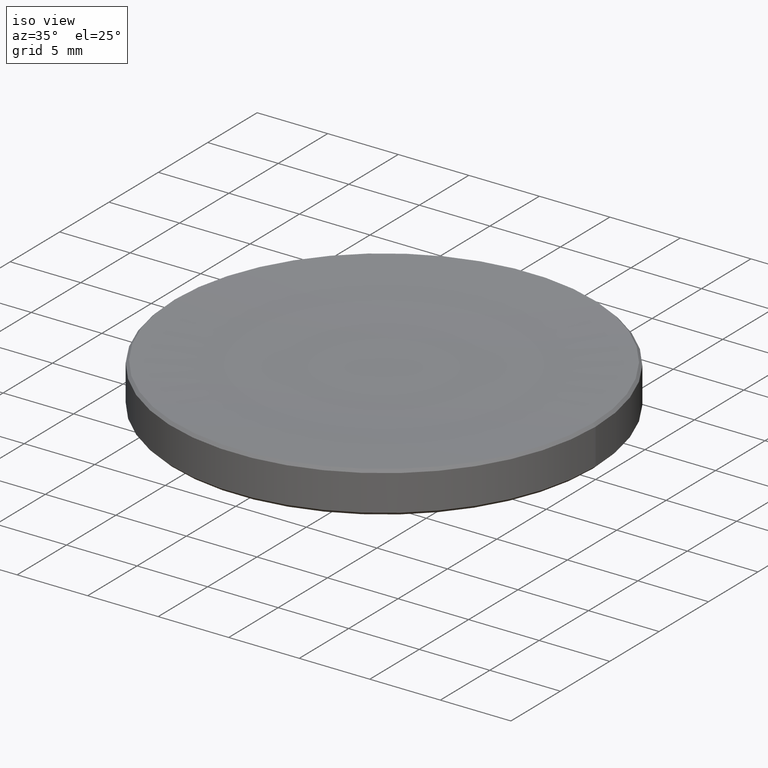
[diagram: clean part render]
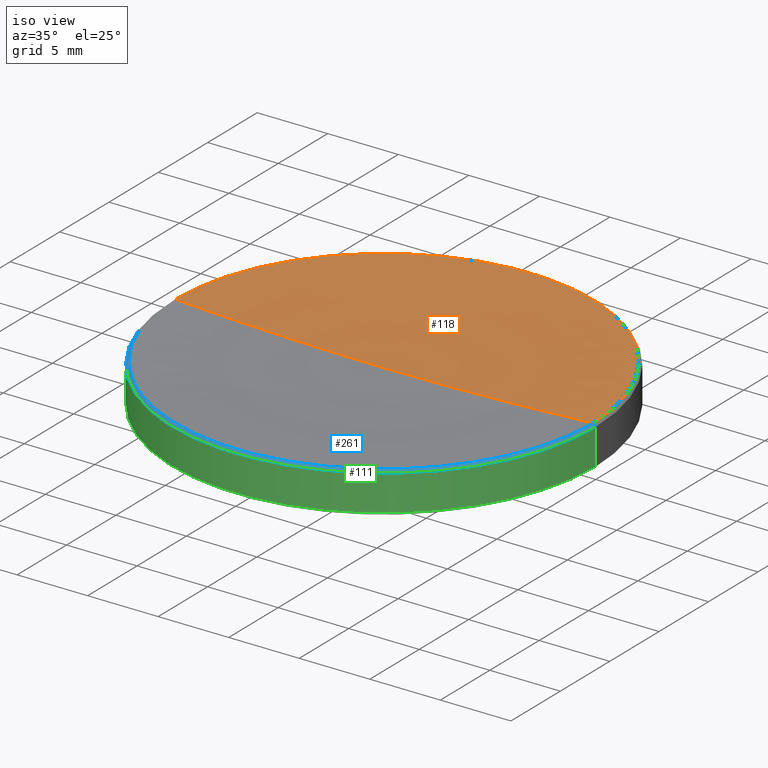
[diagram: same view with three faces highlighted in distinct colors, each labeled with its STEP entity id]
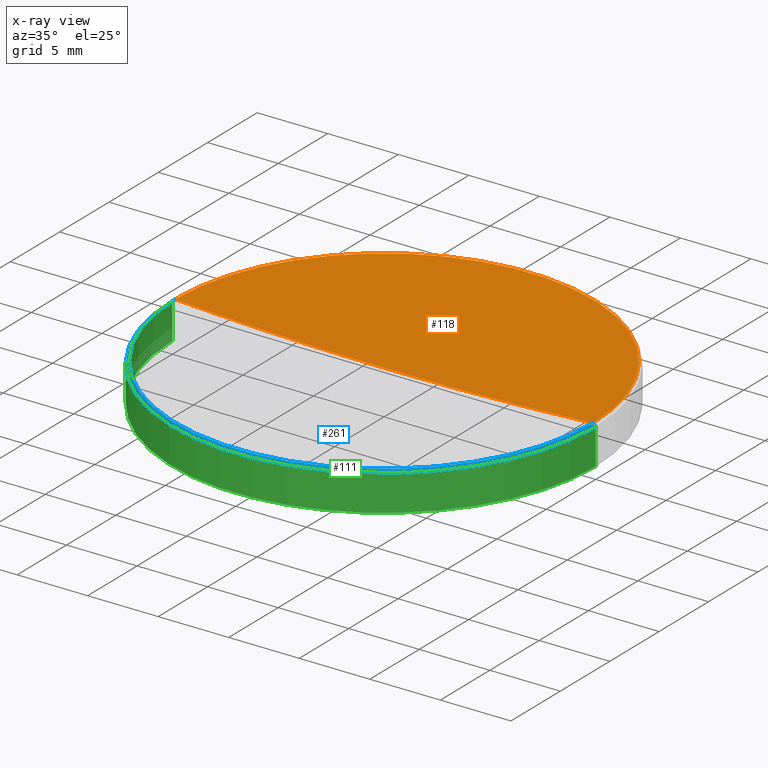
[diagram: x-ray of the same camera — body ghosted, the three highlighted faces saturated]
A machine part, iso view with three faces highlighted in distinct colors.
The next image is the same camera in x-ray (body ghosted, the three faces saturated) — at least one of them is partly hidden behind the body in this view.
Their STEP definitions:

[orange] entity #118 — the highlighted toroidal blend (fillet) surface has major radius 0.0668 mm and minor (blend) radius 258.18 mm.
#4 = DIRECTION ( 'NONE',  ( 1.224646799147353207E-16, 1.000000000000000000, 0.000000000000000000 ) ) ;
#8 = TOROIDAL_SURFACE ( 'NONE', #230, -0.06682641297565440619, 258.1800000000000068 ) ;
#20 = VERTEX_POINT ( 'NONE', #85 ) ;
#39 = AXIS2_PLACEMENT_3D ( 'NONE', #66, #229, #137 ) ;
#40 = EDGE_LOOP ( 'NONE', ( #71, #87, #244 ) ) ;
#42 = DIRECTION ( 'NONE',  ( 0.000000000000000000, 0.000000000000000000, -1.000000000000000000 ) ) ;
#48 = EDGE_CURVE ( 'NONE', #173, #121, #160, .T. ) ;
#66 = CARTESIAN_POINT ( 'NONE',  ( 0.000000000000000000, 0.000000000000000000, 2.929019919806263861 ) ) ;
#71 = ORIENTED_EDGE ( 'NONE', *, *, #231, .F. ) ;
#85 = CARTESIAN_POINT ( 'NONE',  ( -14.81098008019427681, 1.813821934744513201E-15, 2.929019919806235883 ) ) ;
#87 = ORIENTED_EDGE ( 'NONE', *, *, #48, .T. ) ;
#91 = DIRECTION ( 'NONE',  ( -1.000000000000000000, 1.224646799147353207E-16, 0.000000000000000000 ) ) ;
#97 = CIRCLE ( 'NONE', #185, 258.1800000000000068 ) ;
#109 = CARTESIAN_POINT ( 'NONE',  ( 0.000000000000000000, 0.000000000000000000, 260.6799913514417426 ) ) ;
#117 = CARTESIAN_POINT ( 'NONE',  ( 0.06682641297565440619, -8.183875274913430883E-18, 260.6799913514417426 ) ) ;
#118 = ADVANCED_FACE ( 'NONE', ( #217 ), #8, .F. ) ;
#121 = VERTEX_POINT ( 'NONE', #141 ) ;
#127 = CARTESIAN_POINT ( 'NONE',  ( 0.000000000000000000, 0.000000000000000000, 2.500000000000000000 ) ) ;
#137 = DIRECTION ( 'NONE',  ( 1.000000000000000000, 0.000000000000000000, 0.000000000000000000 ) ) ;
#141 = CARTESIAN_POINT ( 'NONE',  ( 14.81098008019427681, 0.000000000000000000, 2.929019919806235883 ) ) ;
#151 = CARTESIAN_POINT ( 'NONE',  ( -0.06682641297565440619, 0.000000000000000000, 260.6799913514417426 ) ) ;
#160 = CIRCLE ( 'NONE', #211, 258.1800000000000068 ) ;
#173 = VERTEX_POINT ( 'NONE', #127 ) ;
#185 = AXIS2_PLACEMENT_3D ( 'NONE', #117, #4, #91 ) ;
#196 = DIRECTION ( 'NONE',  ( 0.000000000000000000, -1.000000000000000000, 0.000000000000000000 ) ) ;
#198 = CIRCLE ( 'NONE', #39, 14.81098008019381673 ) ;
#208 = DIRECTION ( 'NONE',  ( -0.000000000000000000, -0.000000000000000000, 1.000000000000000000 ) ) ;
#211 = AXIS2_PLACEMENT_3D ( 'NONE', #151, #196, #42 ) ;
#217 = FACE_OUTER_BOUND ( 'NONE', #40, .T. ) ;
#222 = DIRECTION ( 'NONE',  ( 1.000000000000000000, 0.000000000000000000, 0.000000000000000000 ) ) ;
#227 = EDGE_CURVE ( 'NONE', #121, #20, #198, .T. ) ;
#229 = DIRECTION ( 'NONE',  ( -0.000000000000000000, -0.000000000000000000, 1.000000000000000000 ) ) ;
#230 = AXIS2_PLACEMENT_3D ( 'NONE', #109, #208, #222 ) ;
#231 = EDGE_CURVE ( 'NONE', #173, #20, #97, .T. ) ;
#244 = ORIENTED_EDGE ( 'NONE', *, *, #227, .T. ) ;

[blue] entity #261 — the highlighted conical surface has half-angle 45 deg.
#7 = CARTESIAN_POINT ( 'NONE',  ( 14.81098008019379542, 1.813821934744454036E-15, 2.929019919806208350 ) ) ;
#20 = VERTEX_POINT ( 'NONE', #85 ) ;
#29 = AXIS2_PLACEMENT_3D ( 'NONE', #30, #49, #92 ) ;
#30 = CARTESIAN_POINT ( 'NONE',  ( 0.000000000000000000, 0.000000000000000000, 2.740000000000020197 ) ) ;
#43 = EDGE_CURVE ( 'NONE', #20, #99, #54, .T. ) ;
#44 = CARTESIAN_POINT ( 'NONE',  ( -14.81098008019379542, 0.000000000000000000, 2.929019919806208350 ) ) ;
#47 = CIRCLE ( 'NONE', #234, 14.81098008019381673 ) ;
#49 = DIRECTION ( 'NONE',  ( 0.000000000000000000, 0.000000000000000000, -1.000000000000000000 ) ) ;
#54 = LINE ( 'NONE', #44, #136 ) ;
#82 = EDGE_CURVE ( 'NONE', #20, #121, #47, .T. ) ;
#85 = CARTESIAN_POINT ( 'NONE',  ( -14.81098008019427681, 1.813821934744513201E-15, 2.929019919806235883 ) ) ;
#88 = ORIENTED_EDGE ( 'NONE', *, *, #82, .F. ) ;
#90 = VECTOR ( 'NONE', #96, 1000.000000000000114 ) ;
#92 = DIRECTION ( 'NONE',  ( -1.000000000000000000, 0.000000000000000000, 0.000000000000000000 ) ) ;
#94 = CARTESIAN_POINT ( 'NONE',  ( 0.000000000000000000, 0.000000000000000000, 2.929019919806208350 ) ) ;
#96 = DIRECTION ( 'NONE',  ( 0.7071067811865766606, 8.659560562355291543E-17, -0.7071067811865182628 ) ) ;
#99 = VERTEX_POINT ( 'NONE', #232 ) ;
#112 = EDGE_LOOP ( 'NONE', ( #146, #88, #193, #114 ) ) ;
#114 = ORIENTED_EDGE ( 'NONE', *, *, #250, .F. ) ;
#121 = VERTEX_POINT ( 'NONE', #141 ) ;
#123 = CARTESIAN_POINT ( 'NONE',  ( 15.00000000000000000, 0.000000000000000000, 2.740000000000020197 ) ) ;
#136 = VECTOR ( 'NONE', #174, 1000.000000000000114 ) ;
#141 = CARTESIAN_POINT ( 'NONE',  ( 14.81098008019427681, 0.000000000000000000, 2.929019919806235883 ) ) ;
#146 = ORIENTED_EDGE ( 'NONE', *, *, #153, .F. ) ;
#153 = EDGE_CURVE ( 'NONE', #121, #170, #257, .T. ) ;
#170 = VERTEX_POINT ( 'NONE', #123 ) ;
#174 = DIRECTION ( 'NONE',  ( -0.7071067811865766606, 0.000000000000000000, -0.7071067811865182628 ) ) ;
#180 = FACE_OUTER_BOUND ( 'NONE', #112, .T. ) ;
#189 = CARTESIAN_POINT ( 'NONE',  ( 0.000000000000000000, 0.000000000000000000, 2.929019919806263861 ) ) ;
#193 = ORIENTED_EDGE ( 'NONE', *, *, #43, .T. ) ;
#226 = CONICAL_SURFACE ( 'NONE', #255, 14.81098008019379542, 0.7853981633974895793 ) ;
#228 = DIRECTION ( 'NONE',  ( 1.000000000000000000, 0.000000000000000000, 0.000000000000000000 ) ) ;
#232 = CARTESIAN_POINT ( 'NONE',  ( -15.00000000000000000, 1.836970198721029589E-15, 2.740000000000020197 ) ) ;
#234 = AXIS2_PLACEMENT_3D ( 'NONE', #189, #246, #228 ) ;
#245 = CIRCLE ( 'NONE', #29, 15.00000000000000000 ) ;
#246 = DIRECTION ( 'NONE',  ( -0.000000000000000000, -0.000000000000000000, 1.000000000000000000 ) ) ;
#250 = EDGE_CURVE ( 'NONE', #170, #99, #245, .T. ) ;
#251 = DIRECTION ( 'NONE',  ( -1.000000000000000000, 0.000000000000000000, 0.000000000000000000 ) ) ;
#254 = DIRECTION ( 'NONE',  ( 0.000000000000000000, 0.000000000000000000, -1.000000000000000000 ) ) ;
#255 = AXIS2_PLACEMENT_3D ( 'NONE', #94, #254, #251 ) ;
#257 = LINE ( 'NONE', #7, #90 ) ;
#261 = ADVANCED_FACE ( 'NONE', ( #180 ), #226, .T. ) ;

[green] entity #111 — the highlighted cylindrical surface (partial cylindrical patch) has radius 15 mm, axis along (-0, -0, 1).
#3 = CARTESIAN_POINT ( 'NONE',  ( -15.00000000000000000, 1.836970198721029589E-15, 0.2000000000000048683 ) ) ;
#16 = DIRECTION ( 'NONE',  ( -0.000000000000000000, -0.000000000000000000, 1.000000000000000000 ) ) ;
#18 = CIRCLE ( 'NONE', #89, 15.00000000000000000 ) ;
#21 = CARTESIAN_POINT ( 'NONE',  ( 15.00000000000000000, 0.000000000000000000, 2.500000000000000000 ) ) ;
#22 = ORIENTED_EDGE ( 'NONE', *, *, #250, .T. ) ;
#26 = EDGE_CURVE ( 'NONE', #213, #216, #18, .T. ) ;
#29 = AXIS2_PLACEMENT_3D ( 'NONE', #30, #49, #92 ) ;
#30 = CARTESIAN_POINT ( 'NONE',  ( 0.000000000000000000, 0.000000000000000000, 2.740000000000020197 ) ) ;
#35 = LINE ( 'NONE', #21, #124 ) ;
#37 = DIRECTION ( 'NONE',  ( -0.000000000000000000, -0.000000000000000000, 1.000000000000000000 ) ) ;
#49 = DIRECTION ( 'NONE',  ( 0.000000000000000000, 0.000000000000000000, -1.000000000000000000 ) ) ;
#50 = CARTESIAN_POINT ( 'NONE',  ( 0.000000000000000000, 0.000000000000000000, 2.500000000000000000 ) ) ;
#58 = ORIENTED_EDGE ( 'NONE', *, *, #69, .T. ) ;
#64 = ORIENTED_EDGE ( 'NONE', *, *, #26, .T. ) ;
#69 = EDGE_CURVE ( 'NONE', #216, #170, #35, .T. ) ;
#72 = DIRECTION ( 'NONE',  ( -0.000000000000000000, -0.000000000000000000, 1.000000000000000000 ) ) ;
#76 = DIRECTION ( 'NONE',  ( 1.000000000000000000, 0.000000000000000000, 0.000000000000000000 ) ) ;
#89 = AXIS2_PLACEMENT_3D ( 'NONE', #266, #221, #76 ) ;
#92 = DIRECTION ( 'NONE',  ( -1.000000000000000000, 0.000000000000000000, 0.000000000000000000 ) ) ;
#98 = AXIS2_PLACEMENT_3D ( 'NONE', #50, #37, #103 ) ;
#99 = VERTEX_POINT ( 'NONE', #232 ) ;
#100 = CARTESIAN_POINT ( 'NONE',  ( -15.00000000000000000, 1.836970198721029589E-15, 2.500000000000000000 ) ) ;
#103 = DIRECTION ( 'NONE',  ( 1.000000000000000000, 0.000000000000000000, 0.000000000000000000 ) ) ;
#111 = ADVANCED_FACE ( 'NONE', ( #157 ), #186, .T. ) ;
#123 = CARTESIAN_POINT ( 'NONE',  ( 15.00000000000000000, 0.000000000000000000, 2.740000000000020197 ) ) ;
#124 = VECTOR ( 'NONE', #16, 1000.000000000000000 ) ;
#150 = EDGE_LOOP ( 'NONE', ( #190, #64, #58, #22 ) ) ;
#154 = CARTESIAN_POINT ( 'NONE',  ( 15.00000000000000000, 0.000000000000000000, 0.2000000000000048683 ) ) ;
#157 = FACE_OUTER_BOUND ( 'NONE', #150, .T. ) ;
#158 = VECTOR ( 'NONE', #72, 1000.000000000000000 ) ;
#170 = VERTEX_POINT ( 'NONE', #123 ) ;
#181 = EDGE_CURVE ( 'NONE', #213, #99, #220, .T. ) ;
#186 = CYLINDRICAL_SURFACE ( 'NONE', #98, 15.00000000000000000 ) ;
#190 = ORIENTED_EDGE ( 'NONE', *, *, #181, .F. ) ;
#213 = VERTEX_POINT ( 'NONE', #3 ) ;
#216 = VERTEX_POINT ( 'NONE', #154 ) ;
#220 = LINE ( 'NONE', #100, #158 ) ;
#221 = DIRECTION ( 'NONE',  ( -0.000000000000000000, -0.000000000000000000, 1.000000000000000000 ) ) ;
#232 = CARTESIAN_POINT ( 'NONE',  ( -15.00000000000000000, 1.836970198721029589E-15, 2.740000000000020197 ) ) ;
#245 = CIRCLE ( 'NONE', #29, 15.00000000000000000 ) ;
#250 = EDGE_CURVE ( 'NONE', #170, #99, #245, .T. ) ;
#266 = CARTESIAN_POINT ( 'NONE',  ( 0.000000000000000000, 0.000000000000000000, 0.2000000000000048683 ) ) ;